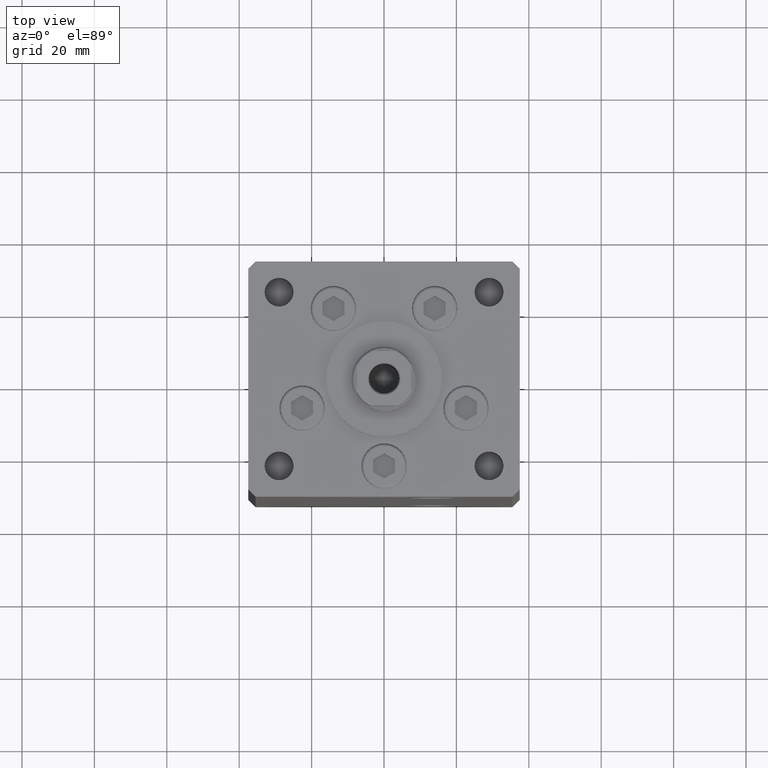
[diagram: clean part render]
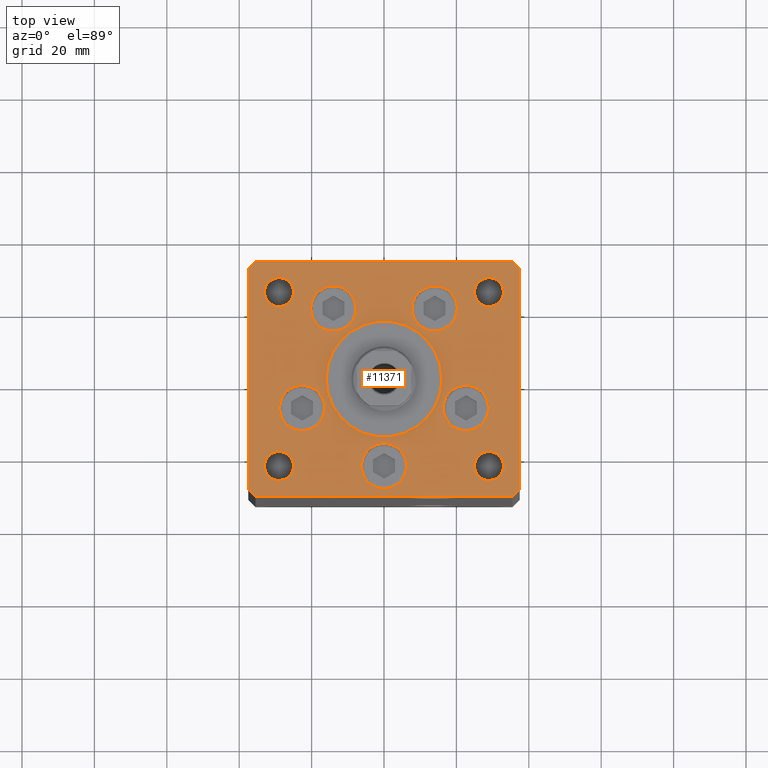
[diagram: same view with one face highlighted and labeled with its STEP entity id]
A machine part, top view. The second image highlights one B-rep face of the part: STEP entity #11371.
In plain terms, the highlighted planar face has unit normal (0, 0, 1).
Its self-contained STEP definition (entity closure, byte-faithful):
#59 = CARTESIAN_POINT ( 'NONE',  ( 0.000000000000000000, 0.000000000000000000, 0.000000000000000000 ) ) ;
#504 = CARTESIAN_POINT ( 'NONE',  ( 13.99106857963324124, 19.50000000000000000, 0.000000000000000000 ) ) ;
#642 = VECTOR ( 'NONE', #18514, 1000.000000000000000 ) ;
#1309 = ORIENTED_EDGE ( 'NONE', *, *, #14091, .F. ) ;
#1311 = DIRECTION ( 'NONE',  ( 0.000000000000000000, 0.000000000000000000, 1.000000000000000000 ) ) ;
#1684 = VERTEX_POINT ( 'NONE', #42553 ) ;
#1759 = VERTEX_POINT ( 'NONE', #39364 ) ;
#1983 = DIRECTION ( 'NONE',  ( 1.000000000000000000, 1.172770800660376149E-15, 0.000000000000000000 ) ) ;
#2036 = ORIENTED_EDGE ( 'NONE', *, *, #43603, .F. ) ;
#2453 = LINE ( 'NONE', #6153, #8930 ) ;
#2920 = VERTEX_POINT ( 'NONE', #37742 ) ;
#3001 = DIRECTION ( 'NONE',  ( 0.000000000000000000, 0.000000000000000000, 1.000000000000000000 ) ) ;
#3899 = CARTESIAN_POINT ( 'NONE',  ( 7.741068579633241242, 19.50000000000000000, 0.000000000000000000 ) ) ;
#3918 = CARTESIAN_POINT ( 'NONE',  ( -29.00000000000000000, -23.99999999999999645, 0.000000000000000000 ) ) ;
#4272 = DIRECTION ( 'NONE',  ( 1.000000000000000000, 0.000000000000000000, 0.000000000000000000 ) ) ;
#4514 = CIRCLE ( 'NONE', #40778, 6.250000000000000000 ) ;
#4847 = AXIS2_PLACEMENT_3D ( 'NONE', #3918, #36385, #51683 ) ;
#4854 = DIRECTION ( 'NONE',  ( 1.000000000000000000, 0.000000000000000000, 0.000000000000000000 ) ) ;
#4938 = EDGE_LOOP ( 'NONE', ( #35464, #45800 ) ) ;
#5071 = CIRCLE ( 'NONE', #32886, 3.999999999999996447 ) ;
#5214 = CIRCLE ( 'NONE', #48212, 6.250000000000000000 ) ;
#5333 = CIRCLE ( 'NONE', #23889, 4.000000000000000000 ) ;
#5590 = VERTEX_POINT ( 'NONE', #27078 ) ;
#5600 = EDGE_CURVE ( 'NONE', #1684, #37403, #8395, .T. ) ;
#5749 = VERTEX_POINT ( 'NONE', #13590 ) ;
#5907 = VERTEX_POINT ( 'NONE', #24361 ) ;
#6153 = CARTESIAN_POINT ( 'NONE',  ( 37.50000000000000711, 30.50000000000001421, 0.000000000000000000 ) ) ;
#6249 = ORIENTED_EDGE ( 'NONE', *, *, #11017, .F. ) ;
#6332 = EDGE_CURVE ( 'NONE', #5907, #32413, #36235, .T. ) ;
#6538 = CARTESIAN_POINT ( 'NONE',  ( -35.50000000000001421, -32.50000000000000711, 0.000000000000000000 ) ) ;
#6680 = FACE_BOUND ( 'NONE', #10077, .T. ) ;
#6888 = ORIENTED_EDGE ( 'NONE', *, *, #6332, .F. ) ;
#7538 = EDGE_CURVE ( 'NONE', #43900, #51344, #8433, .T. ) ;
#7555 = EDGE_LOOP ( 'NONE', ( #34610, #1309 ) ) ;
#7612 = EDGE_CURVE ( 'NONE', #5590, #32575, #5071, .T. ) ;
#7714 = AXIS2_PLACEMENT_3D ( 'NONE', #32659, #20289, #36865 ) ;
#7883 = ORIENTED_EDGE ( 'NONE', *, *, #21515, .T. ) ;
#7967 = DIRECTION ( 'NONE',  ( -1.000000000000000000, 0.000000000000000000, 0.000000000000000000 ) ) ;
#8020 = EDGE_CURVE ( 'NONE', #37403, #1684, #29549, .T. ) ;
#8115 = ORIENTED_EDGE ( 'NONE', *, *, #48216, .T. ) ;
#8395 = CIRCLE ( 'NONE', #50514, 16.00000000000000355 ) ;
#8433 = CIRCLE ( 'NONE', #37975, 6.250000000000001776 ) ;
#8507 = ORIENTED_EDGE ( 'NONE', *, *, #8974, .F. ) ;
#8768 = CARTESIAN_POINT ( 'NONE',  ( 37.50000000000000711, 30.50000000000001421, 0.000000000000000000 ) ) ;
#8777 = VERTEX_POINT ( 'NONE', #11595 ) ;
#8930 = VECTOR ( 'NONE', #14872, 1000.000000000000000 ) ;
#8974 = EDGE_CURVE ( 'NONE', #51344, #43900, #32928, .T. ) ;
#8977 = DIRECTION ( 'NONE',  ( 1.000000000000000000, 0.000000000000000000, 0.000000000000000000 ) ) ;
#9369 = ORIENTED_EDGE ( 'NONE', *, *, #18231, .T. ) ;
#9372 = CARTESIAN_POINT ( 'NONE',  ( -37.50000000000001421, 30.50000000000000000, 0.000000000000000000 ) ) ;
#9802 = CARTESIAN_POINT ( 'NONE',  ( -28.87741699796953654, -8.000000000000000000, 0.000000000000000000 ) ) ;
#10063 = DIRECTION ( 'NONE',  ( -0.000000000000000000, -0.000000000000000000, -1.000000000000000000 ) ) ;
#10077 = EDGE_LOOP ( 'NONE', ( #9369, #41354 ) ) ;
#10484 = CARTESIAN_POINT ( 'NONE',  ( -29.00000000000000000, -23.99999999999999645, 0.000000000000000000 ) ) ;
#10535 = DIRECTION ( 'NONE',  ( 1.000000000000000000, 0.000000000000000000, 0.000000000000000000 ) ) ;
#10636 = FACE_BOUND ( 'NONE', #44113, .T. ) ;
#10901 = FACE_BOUND ( 'NONE', #49908, .T. ) ;
#11017 = EDGE_CURVE ( 'NONE', #27790, #43711, #11904, .T. ) ;
#11354 = DIRECTION ( 'NONE',  ( -1.000000000000000000, 0.000000000000000000, 0.000000000000000000 ) ) ;
#11371 = ADVANCED_FACE ( 'NONE', ( #38352, #34393, #46790, #50493, #47053, #10636, #6680, #26746, #50994, #14876, #10901 ), #48609, .T. ) ;
#11509 = ORIENTED_EDGE ( 'NONE', *, *, #14297, .T. ) ;
#11531 = ORIENTED_EDGE ( 'NONE', *, *, #8020, .F. ) ;
#11595 = CARTESIAN_POINT ( 'NONE',  ( -37.50000000000001421, 30.50000000000000000, 0.000000000000000000 ) ) ;
#11904 = CIRCLE ( 'NONE', #13619, 6.250000000000000000 ) ;
#12179 = CARTESIAN_POINT ( 'NONE',  ( -20.24106857963324302, 19.50000000000000000, 0.000000000000000000 ) ) ;
#12191 = EDGE_CURVE ( 'NONE', #44228, #40920, #12816, .T. ) ;
#12521 = VECTOR ( 'NONE', #1983, 1000.000000000000000 ) ;
#12816 = CIRCLE ( 'NONE', #7714, 4.000000000000000000 ) ;
#12949 = VERTEX_POINT ( 'NONE', #8768 ) ;
#13013 = AXIS2_PLACEMENT_3D ( 'NONE', #16134, #43549, #11354 ) ;
#13590 = CARTESIAN_POINT ( 'NONE',  ( 35.50000000000001421, -32.49999999999992184, 0.000000000000000000 ) ) ;
#13619 = AXIS2_PLACEMENT_3D ( 'NONE', #504, #24277, #24537 ) ;
#14091 = EDGE_CURVE ( 'NONE', #39537, #44415, #5214, .T. ) ;
#14297 = EDGE_CURVE ( 'NONE', #8777, #39823, #22064, .T. ) ;
#14720 = CIRCLE ( 'NONE', #13013, 4.000000000000000000 ) ;
#14872 = DIRECTION ( 'NONE',  ( -0.7071067811865524577, 0.7071067811865426878, 0.000000000000000000 ) ) ;
#14876 = FACE_OUTER_BOUND ( 'NONE', #35218, .T. ) ;
#14970 = CARTESIAN_POINT ( 'NONE',  ( 37.50000000000000711, -30.49999999999992895, 0.000000000000000000 ) ) ;
#15100 = DIRECTION ( 'NONE',  ( 1.000000000000000000, 0.000000000000000000, 0.000000000000000000 ) ) ;
#15231 = CARTESIAN_POINT ( 'NONE',  ( -16.37741699796953299, -8.000000000000000000, 0.000000000000000000 ) ) ;
#15334 = LINE ( 'NONE', #43282, #22373 ) ;
#15509 = AXIS2_PLACEMENT_3D ( 'NONE', #45664, #1311, #16917 ) ;
#16134 = CARTESIAN_POINT ( 'NONE',  ( 29.00000000000000355, -23.99999999999999645, 0.000000000000000000 ) ) ;
#16608 = AXIS2_PLACEMENT_3D ( 'NONE', #37044, #29141, #17021 ) ;
#16773 = CARTESIAN_POINT ( 'NONE',  ( 0.000000000000000000, -6.938893903907228378E-15, 0.000000000000000000 ) ) ;
#16917 = DIRECTION ( 'NONE',  ( 1.000000000000000000, 0.000000000000000000, 0.000000000000000000 ) ) ;
#17021 = DIRECTION ( 'NONE',  ( 1.000000000000000000, 0.000000000000000000, 0.000000000000000000 ) ) ;
#17182 = VERTEX_POINT ( 'NONE', #45966 ) ;
#17516 = CARTESIAN_POINT ( 'NONE',  ( -35.50000000000000711, 32.49999999999997868, 0.000000000000000000 ) ) ;
#17861 = LINE ( 'NONE', #42621, #12521 ) ;
#18100 = DIRECTION ( 'NONE',  ( 2.275047181608926165E-16, -1.000000000000000000, 0.000000000000000000 ) ) ;
#18179 = CARTESIAN_POINT ( 'NONE',  ( -22.62741699796953299, -8.000000000000000000, 0.000000000000000000 ) ) ;
#18231 = EDGE_CURVE ( 'NONE', #20253, #25289, #5333, .T. ) ;
#18514 = DIRECTION ( 'NONE',  ( 0.7071067811865512365, -0.7071067811865439090, 0.000000000000000000 ) ) ;
#18624 = AXIS2_PLACEMENT_3D ( 'NONE', #18179, #18942, #19203 ) ;
#18942 = DIRECTION ( 'NONE',  ( 0.000000000000000000, 0.000000000000000000, 1.000000000000000000 ) ) ;
#18983 = CARTESIAN_POINT ( 'NONE',  ( 0.000000000000000000, -24.00000000000001066, 0.000000000000000000 ) ) ;
#19203 = DIRECTION ( 'NONE',  ( 1.000000000000000000, 0.000000000000000000, 0.000000000000000000 ) ) ;
#19650 = DIRECTION ( 'NONE',  ( 1.000000000000000000, 0.000000000000000000, 0.000000000000000000 ) ) ;
#19654 = CARTESIAN_POINT ( 'NONE',  ( 13.99106857963324124, 19.50000000000000000, 0.000000000000000000 ) ) ;
#19986 = ORIENTED_EDGE ( 'NONE', *, *, #25283, .T. ) ;
#20074 = DIRECTION ( 'NONE',  ( 0.000000000000000000, 1.000000000000000000, 0.000000000000000000 ) ) ;
#20163 = EDGE_CURVE ( 'NONE', #40920, #44228, #51873, .T. ) ;
#20253 = VERTEX_POINT ( 'NONE', #24423 ) ;
#20289 = DIRECTION ( 'NONE',  ( 0.000000000000000000, 0.000000000000000000, 1.000000000000000000 ) ) ;
#20651 = EDGE_LOOP ( 'NONE', ( #36478, #33910 ) ) ;
#21515 = EDGE_CURVE ( 'NONE', #2920, #44753, #27286, .T. ) ;
#21693 = CARTESIAN_POINT ( 'NONE',  ( -37.50000000000000000, -30.50000000000004263, 0.000000000000000000 ) ) ;
#22064 = LINE ( 'NONE', #9372, #49069 ) ;
#22373 = VECTOR ( 'NONE', #20074, 1000.000000000000000 ) ;
#22806 = AXIS2_PLACEMENT_3D ( 'NONE', #38915, #3001, #19650 ) ;
#22989 = CARTESIAN_POINT ( 'NONE',  ( 16.00000000000000355, -4.979459025271462852E-15, 0.000000000000000000 ) ) ;
#23022 = EDGE_LOOP ( 'NONE', ( #32475, #11531 ) ) ;
#23328 = DIRECTION ( 'NONE',  ( -1.000000000000000000, -1.954618001100627573E-16, 0.000000000000000000 ) ) ;
#23377 = CARTESIAN_POINT ( 'NONE',  ( 24.99999999999999645, 24.00000000000000355, 0.000000000000000000 ) ) ;
#23889 = AXIS2_PLACEMENT_3D ( 'NONE', #31991, #44394, #7967 ) ;
#24131 = DIRECTION ( 'NONE',  ( 0.000000000000000000, 0.000000000000000000, 1.000000000000000000 ) ) ;
#24277 = DIRECTION ( 'NONE',  ( 0.000000000000000000, 0.000000000000000000, 1.000000000000000000 ) ) ;
#24361 = CARTESIAN_POINT ( 'NONE',  ( 28.87741699796953654, -8.000000000000000000, 0.000000000000000000 ) ) ;
#24423 = CARTESIAN_POINT ( 'NONE',  ( -25.00000000000000000, 24.00000000000000711, 0.000000000000000000 ) ) ;
#24537 = DIRECTION ( 'NONE',  ( 1.000000000000000000, 0.000000000000000000, 0.000000000000000000 ) ) ;
#25283 = EDGE_CURVE ( 'NONE', #17182, #1759, #28491, .T. ) ;
#25289 = VERTEX_POINT ( 'NONE', #43350 ) ;
#25409 = VECTOR ( 'NONE', #29179, 1000.000000000000000 ) ;
#25429 = EDGE_CURVE ( 'NONE', #39823, #49171, #38544, .T. ) ;
#25490 = LINE ( 'NONE', #37596, #25409 ) ;
#25554 = EDGE_CURVE ( 'NONE', #25289, #20253, #26792, .T. ) ;
#26386 = CARTESIAN_POINT ( 'NONE',  ( 22.62741699796953299, -8.000000000000000000, 0.000000000000000000 ) ) ;
#26746 = FACE_BOUND ( 'NONE', #20651, .T. ) ;
#26792 = CIRCLE ( 'NONE', #38576, 4.000000000000000000 ) ;
#26860 = LINE ( 'NONE', #43469, #44425 ) ;
#27078 = CARTESIAN_POINT ( 'NONE',  ( -25.00000000000000355, -23.99999999999999645, 0.000000000000000000 ) ) ;
#27214 = CIRCLE ( 'NONE', #38171, 6.250000000000000000 ) ;
#27286 = LINE ( 'NONE', #34667, #47724 ) ;
#27510 = EDGE_CURVE ( 'NONE', #49171, #5749, #17861, .T. ) ;
#27790 = VERTEX_POINT ( 'NONE', #32565 ) ;
#28034 = CARTESIAN_POINT ( 'NONE',  ( 29.00000000000000355, -23.99999999999999645, 0.000000000000000000 ) ) ;
#28491 = CIRCLE ( 'NONE', #41116, 4.000000000000000000 ) ;
#29141 = DIRECTION ( 'NONE',  ( 0.000000000000000000, 0.000000000000000000, 1.000000000000000000 ) ) ;
#29179 = DIRECTION ( 'NONE',  ( -0.7071067811865524577, -0.7071067811865426878, 0.000000000000000000 ) ) ;
#29303 = EDGE_CURVE ( 'NONE', #44753, #8777, #25490, .T. ) ;
#29549 = CIRCLE ( 'NONE', #22806, 16.00000000000000355 ) ;
#29863 = CARTESIAN_POINT ( 'NONE',  ( -29.00000000000000000, 24.00000000000000711, 0.000000000000000000 ) ) ;
#30347 = DIRECTION ( 'NONE',  ( 0.000000000000000000, 0.000000000000000000, 1.000000000000000000 ) ) ;
#30543 = EDGE_CURVE ( 'NONE', #43711, #27790, #27214, .T. ) ;
#30923 = DIRECTION ( 'NONE',  ( 0.000000000000000000, 0.000000000000000000, 1.000000000000000000 ) ) ;
#31589 = ORIENTED_EDGE ( 'NONE', *, *, #29303, .T. ) ;
#31991 = CARTESIAN_POINT ( 'NONE',  ( -29.00000000000000000, 24.00000000000000711, 0.000000000000000000 ) ) ;
#32332 = DIRECTION ( 'NONE',  ( 0.000000000000000000, 0.000000000000000000, 1.000000000000000000 ) ) ;
#32413 = VERTEX_POINT ( 'NONE', #35760 ) ;
#32475 = ORIENTED_EDGE ( 'NONE', *, *, #5600, .F. ) ;
#32565 = CARTESIAN_POINT ( 'NONE',  ( 20.24106857963324302, 19.50000000000000000, 0.000000000000000000 ) ) ;
#32575 = VERTEX_POINT ( 'NONE', #34152 ) ;
#32659 = CARTESIAN_POINT ( 'NONE',  ( 29.00000000000000000, 24.00000000000000355, 0.000000000000000000 ) ) ;
#32886 = AXIS2_PLACEMENT_3D ( 'NONE', #10484, #41183, #46393 ) ;
#32928 = CIRCLE ( 'NONE', #18624, 6.250000000000001776 ) ;
#33101 = EDGE_CURVE ( 'NONE', #36414, #44996, #38245, .T. ) ;
#33117 = DIRECTION ( 'NONE',  ( 1.000000000000000000, 0.000000000000000000, 0.000000000000000000 ) ) ;
#33638 = EDGE_CURVE ( 'NONE', #44415, #39537, #4514, .T. ) ;
#33910 = ORIENTED_EDGE ( 'NONE', *, *, #20163, .F. ) ;
#34023 = ORIENTED_EDGE ( 'NONE', *, *, #34708, .T. ) ;
#34152 = CARTESIAN_POINT ( 'NONE',  ( -32.99999999999999289, -23.99999999999999645, 0.000000000000000000 ) ) ;
#34393 = FACE_BOUND ( 'NONE', #35708, .T. ) ;
#34465 = DIRECTION ( 'NONE',  ( 1.000000000000000000, 0.000000000000000000, 0.000000000000000000 ) ) ;
#34610 = ORIENTED_EDGE ( 'NONE', *, *, #33638, .F. ) ;
#34611 = CARTESIAN_POINT ( 'NONE',  ( 0.000000000000000000, -24.00000000000001066, 0.000000000000000000 ) ) ;
#34667 = CARTESIAN_POINT ( 'NONE',  ( 35.50000000000000000, 32.49999999999999289, 0.000000000000000000 ) ) ;
#34708 = EDGE_CURVE ( 'NONE', #1759, #17182, #14720, .T. ) ;
#35218 = EDGE_LOOP ( 'NONE', ( #46016, #39037, #8115, #37981, #35836, #7883, #31589, #11509 ) ) ;
#35464 = ORIENTED_EDGE ( 'NONE', *, *, #7612, .F. ) ;
#35599 = CARTESIAN_POINT ( 'NONE',  ( -6.250000000000000000, -24.00000000000001066, 0.000000000000000000 ) ) ;
#35680 = DIRECTION ( 'NONE',  ( -1.000000000000000000, 0.000000000000000000, 0.000000000000000000 ) ) ;
#35708 = EDGE_LOOP ( 'NONE', ( #46797, #40278 ) ) ;
#35760 = CARTESIAN_POINT ( 'NONE',  ( 16.37741699796953299, -8.000000000000000000, 0.000000000000000000 ) ) ;
#35836 = ORIENTED_EDGE ( 'NONE', *, *, #40401, .T. ) ;
#36034 = ORIENTED_EDGE ( 'NONE', *, *, #7538, .F. ) ;
#36235 = CIRCLE ( 'NONE', #37940, 6.250000000000001776 ) ;
#36255 = DIRECTION ( 'NONE',  ( 1.000000000000000000, 0.000000000000000000, 0.000000000000000000 ) ) ;
#36385 = DIRECTION ( 'NONE',  ( 0.000000000000000000, 0.000000000000000000, 1.000000000000000000 ) ) ;
#36414 = VERTEX_POINT ( 'NONE', #40437 ) ;
#36478 = ORIENTED_EDGE ( 'NONE', *, *, #12191, .F. ) ;
#36737 = EDGE_CURVE ( 'NONE', #43775, #12949, #15334, .T. ) ;
#36865 = DIRECTION ( 'NONE',  ( 1.000000000000000000, 0.000000000000000000, 0.000000000000000000 ) ) ;
#37044 = CARTESIAN_POINT ( 'NONE',  ( -13.99106857963324124, 19.50000000000000000, 0.000000000000000000 ) ) ;
#37240 = CARTESIAN_POINT ( 'NONE',  ( 33.00000000000000000, 24.00000000000000355, 0.000000000000000000 ) ) ;
#37403 = VERTEX_POINT ( 'NONE', #22989 ) ;
#37596 = CARTESIAN_POINT ( 'NONE',  ( -35.50000000000000711, 32.49999999999997868, 0.000000000000000000 ) ) ;
#37742 = CARTESIAN_POINT ( 'NONE',  ( 35.50000000000000000, 32.49999999999999289, 0.000000000000000000 ) ) ;
#37940 = AXIS2_PLACEMENT_3D ( 'NONE', #41040, #32332, #33117 ) ;
#37975 = AXIS2_PLACEMENT_3D ( 'NONE', #45405, #50593, #8977 ) ;
#37981 = ORIENTED_EDGE ( 'NONE', *, *, #36737, .T. ) ;
#38171 = AXIS2_PLACEMENT_3D ( 'NONE', #19654, #24131, #36255 ) ;
#38245 = CIRCLE ( 'NONE', #15509, 6.250000000000000000 ) ;
#38352 = FACE_BOUND ( 'NONE', #23022, .T. ) ;
#38544 = LINE ( 'NONE', #21693, #642 ) ;
#38576 = AXIS2_PLACEMENT_3D ( 'NONE', #29863, #10063, #45963 ) ;
#38915 = CARTESIAN_POINT ( 'NONE',  ( 0.000000000000000000, -6.938893903907228378E-15, 0.000000000000000000 ) ) ;
#39037 = ORIENTED_EDGE ( 'NONE', *, *, #27510, .T. ) ;
#39219 = ORIENTED_EDGE ( 'NONE', *, *, #30543, .F. ) ;
#39364 = CARTESIAN_POINT ( 'NONE',  ( 33.00000000000000000, -23.99999999999999645, 0.000000000000000000 ) ) ;
#39537 = VERTEX_POINT ( 'NONE', #35599 ) ;
#39823 = VERTEX_POINT ( 'NONE', #41083 ) ;
#39920 = DIRECTION ( 'NONE',  ( -0.000000000000000000, 0.000000000000000000, 1.000000000000000000 ) ) ;
#39983 = AXIS2_PLACEMENT_3D ( 'NONE', #47123, #43163, #34465 ) ;
#40207 = CIRCLE ( 'NONE', #16608, 6.250000000000000000 ) ;
#40278 = ORIENTED_EDGE ( 'NONE', *, *, #46935, .F. ) ;
#40401 = EDGE_CURVE ( 'NONE', #12949, #2920, #2453, .T. ) ;
#40437 = CARTESIAN_POINT ( 'NONE',  ( -7.741068579633241242, 19.50000000000000000, 0.000000000000000000 ) ) ;
#40518 = DIRECTION ( 'NONE',  ( 0.000000000000000000, 0.000000000000000000, 1.000000000000000000 ) ) ;
#40778 = AXIS2_PLACEMENT_3D ( 'NONE', #34611, #30923, #15100 ) ;
#40920 = VERTEX_POINT ( 'NONE', #23377 ) ;
#40957 = EDGE_LOOP ( 'NONE', ( #6249, #39219 ) ) ;
#41040 = CARTESIAN_POINT ( 'NONE',  ( 22.62741699796953299, -8.000000000000000000, 0.000000000000000000 ) ) ;
#41083 = CARTESIAN_POINT ( 'NONE',  ( -37.50000000000000000, -30.50000000000004263, 0.000000000000000000 ) ) ;
#41116 = AXIS2_PLACEMENT_3D ( 'NONE', #28034, #43614, #35680 ) ;
#41183 = DIRECTION ( 'NONE',  ( 0.000000000000000000, 0.000000000000000000, 1.000000000000000000 ) ) ;
#41354 = ORIENTED_EDGE ( 'NONE', *, *, #25554, .T. ) ;
#41848 = CARTESIAN_POINT ( 'NONE',  ( 6.250000000000000000, -24.00000000000001066, 0.000000000000000000 ) ) ;
#42553 = CARTESIAN_POINT ( 'NONE',  ( -16.00000000000000355, -6.938893903907228378E-15, 0.000000000000000000 ) ) ;
#42621 = CARTESIAN_POINT ( 'NONE',  ( -35.50000000000001421, -32.50000000000000711, 0.000000000000000000 ) ) ;
#43163 = DIRECTION ( 'NONE',  ( 0.000000000000000000, 0.000000000000000000, 1.000000000000000000 ) ) ;
#43282 = CARTESIAN_POINT ( 'NONE',  ( 37.50000000000000711, -30.49999999999992895, 0.000000000000000000 ) ) ;
#43350 = CARTESIAN_POINT ( 'NONE',  ( -33.00000000000000000, 24.00000000000000711, 0.000000000000000000 ) ) ;
#43469 = CARTESIAN_POINT ( 'NONE',  ( 35.50000000000001421, -32.49999999999992184, 0.000000000000000000 ) ) ;
#43549 = DIRECTION ( 'NONE',  ( -0.000000000000000000, -0.000000000000000000, -1.000000000000000000 ) ) ;
#43603 = EDGE_CURVE ( 'NONE', #32413, #5907, #45135, .T. ) ;
#43614 = DIRECTION ( 'NONE',  ( -0.000000000000000000, -0.000000000000000000, -1.000000000000000000 ) ) ;
#43711 = VERTEX_POINT ( 'NONE', #3899 ) ;
#43775 = VERTEX_POINT ( 'NONE', #14970 ) ;
#43900 = VERTEX_POINT ( 'NONE', #15231 ) ;
#43924 = AXIS2_PLACEMENT_3D ( 'NONE', #59, #39920, #4272 ) ;
#44113 = EDGE_LOOP ( 'NONE', ( #36034, #8507 ) ) ;
#44228 = VERTEX_POINT ( 'NONE', #37240 ) ;
#44394 = DIRECTION ( 'NONE',  ( -0.000000000000000000, -0.000000000000000000, -1.000000000000000000 ) ) ;
#44415 = VERTEX_POINT ( 'NONE', #41848 ) ;
#44425 = VECTOR ( 'NONE', #46913, 1000.000000000000000 ) ;
#44753 = VERTEX_POINT ( 'NONE', #17516 ) ;
#44996 = VERTEX_POINT ( 'NONE', #12179 ) ;
#45135 = CIRCLE ( 'NONE', #51862, 6.250000000000001776 ) ;
#45332 = CIRCLE ( 'NONE', #4847, 3.999999999999996447 ) ;
#45405 = CARTESIAN_POINT ( 'NONE',  ( -22.62741699796953299, -8.000000000000000000, 0.000000000000000000 ) ) ;
#45664 = CARTESIAN_POINT ( 'NONE',  ( -13.99106857963324124, 19.50000000000000000, 0.000000000000000000 ) ) ;
#45800 = ORIENTED_EDGE ( 'NONE', *, *, #49720, .F. ) ;
#45963 = DIRECTION ( 'NONE',  ( -1.000000000000000000, 0.000000000000000000, 0.000000000000000000 ) ) ;
#45966 = CARTESIAN_POINT ( 'NONE',  ( 25.00000000000000355, -23.99999999999999645, 0.000000000000000000 ) ) ;
#46016 = ORIENTED_EDGE ( 'NONE', *, *, #25429, .T. ) ;
#46393 = DIRECTION ( 'NONE',  ( 1.000000000000000000, 0.000000000000000000, 0.000000000000000000 ) ) ;
#46790 = FACE_BOUND ( 'NONE', #40957, .T. ) ;
#46797 = ORIENTED_EDGE ( 'NONE', *, *, #33101, .F. ) ;
#46913 = DIRECTION ( 'NONE',  ( 0.7071067811865463515, 0.7071067811865487940, 0.000000000000000000 ) ) ;
#46935 = EDGE_CURVE ( 'NONE', #44996, #36414, #40207, .T. ) ;
#47053 = FACE_BOUND ( 'NONE', #7555, .T. ) ;
#47123 = CARTESIAN_POINT ( 'NONE',  ( 29.00000000000000000, 24.00000000000000355, 0.000000000000000000 ) ) ;
#47724 = VECTOR ( 'NONE', #23328, 1000.000000000000000 ) ;
#48185 = EDGE_LOOP ( 'NONE', ( #6888, #2036 ) ) ;
#48212 = AXIS2_PLACEMENT_3D ( 'NONE', #18983, #30347, #50379 ) ;
#48216 = EDGE_CURVE ( 'NONE', #5749, #43775, #26860, .T. ) ;
#48609 = PLANE ( 'NONE',  #43924 ) ;
#49069 = VECTOR ( 'NONE', #18100, 1000.000000000000000 ) ;
#49171 = VERTEX_POINT ( 'NONE', #6538 ) ;
#49671 = DIRECTION ( 'NONE',  ( 0.000000000000000000, 0.000000000000000000, 1.000000000000000000 ) ) ;
#49720 = EDGE_CURVE ( 'NONE', #32575, #5590, #45332, .T. ) ;
#49908 = EDGE_LOOP ( 'NONE', ( #34023, #19986 ) ) ;
#50379 = DIRECTION ( 'NONE',  ( 1.000000000000000000, 0.000000000000000000, 0.000000000000000000 ) ) ;
#50493 = FACE_BOUND ( 'NONE', #48185, .T. ) ;
#50514 = AXIS2_PLACEMENT_3D ( 'NONE', #16773, #40518, #4854 ) ;
#50593 = DIRECTION ( 'NONE',  ( 0.000000000000000000, 0.000000000000000000, 1.000000000000000000 ) ) ;
#50994 = FACE_BOUND ( 'NONE', #4938, .T. ) ;
#51344 = VERTEX_POINT ( 'NONE', #9802 ) ;
#51683 = DIRECTION ( 'NONE',  ( 1.000000000000000000, 0.000000000000000000, 0.000000000000000000 ) ) ;
#51862 = AXIS2_PLACEMENT_3D ( 'NONE', #26386, #49671, #10535 ) ;
#51873 = CIRCLE ( 'NONE', #39983, 4.000000000000000000 ) ;